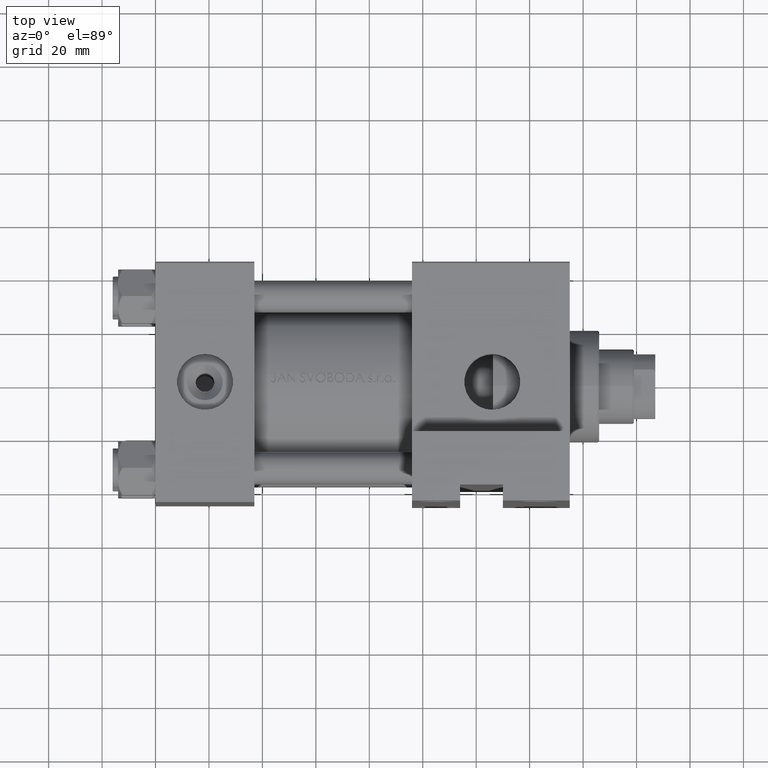
[diagram: clean part render]
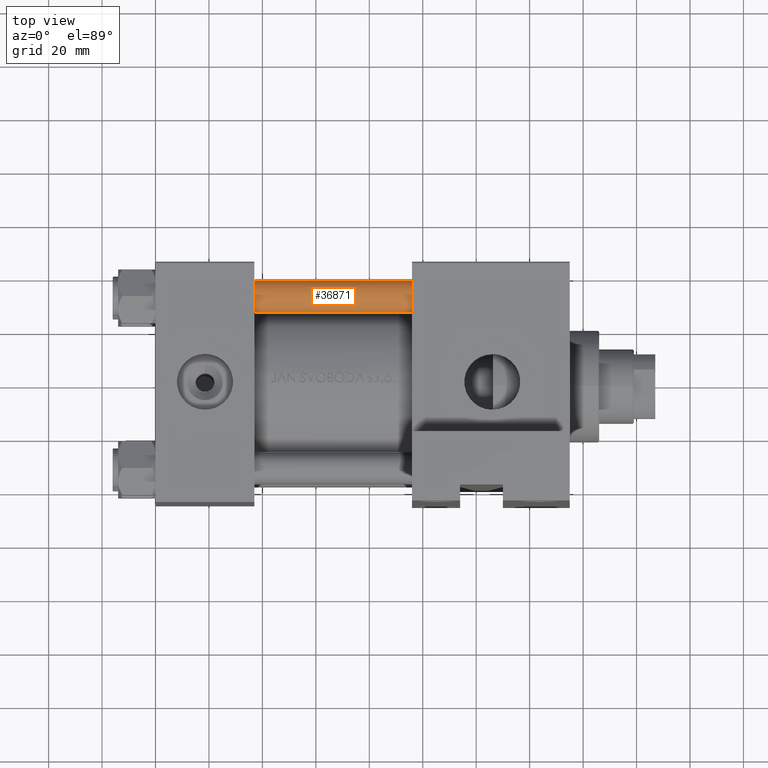
[diagram: same view with one face highlighted and labeled with its STEP entity id]
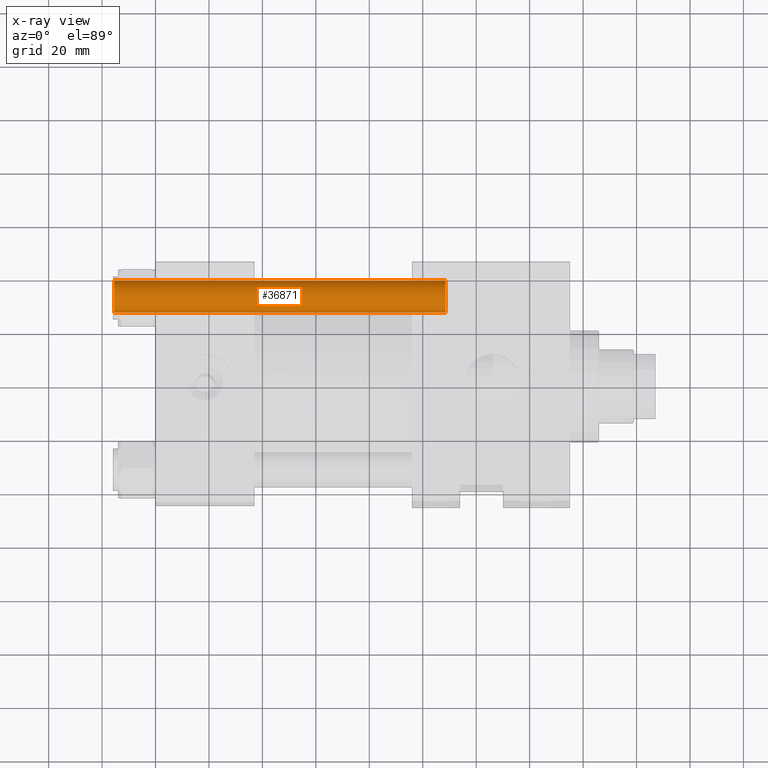
[diagram: x-ray of the same camera — body ghosted, the highlighted face saturated]
A machine part, top view. The second image highlights one B-rep face of the part: STEP entity #36871.
The next image is the same camera in x-ray: the body ghosted, the highlighted face saturated — about 0% of this face is hidden behind the body in this view.
In plain terms, the highlighted cylindrical surface (edge-blend (fillet) strip) has radius 6 mm, axis along (1, -0, 0).
Its self-contained STEP definition (entity closure, byte-faithful):
#3575 = CARTESIAN_POINT ( 'NONE',  ( -6.000000000000000888, 0.000000000000000000, 125.0000000000000000 ) ) ;
#4997 = EDGE_CURVE ( 'NONE', #46533, #47761, #27493, .T. ) ;
#5802 = AXIS2_PLACEMENT_3D ( 'NONE', #44771, #29909, #10306 ) ;
#6062 = CARTESIAN_POINT ( 'NONE',  ( 6.000000000000000888, 7.347880794884120722E-16, 0.4999999999999865663 ) ) ;
#6242 = CYLINDRICAL_SURFACE ( 'NONE', #46631, 6.000000000000000888 ) ;
#6590 = DIRECTION ( 'NONE',  ( -0.000000000000000000, -0.000000000000000000, -1.000000000000000000 ) ) ;
#10306 = DIRECTION ( 'NONE',  ( 1.000000000000000000, 0.000000000000000000, 0.000000000000000000 ) ) ;
#10395 = AXIS2_PLACEMENT_3D ( 'NONE', #21698, #29256, #24967 ) ;
#10764 = DIRECTION ( 'NONE',  ( -0.000000000000000000, -0.000000000000000000, -1.000000000000000000 ) ) ;
#12742 = VERTEX_POINT ( 'NONE', #6062 ) ;
#17248 = EDGE_CURVE ( 'NONE', #47761, #41542, #38018, .T. ) ;
#18842 = DIRECTION ( 'NONE',  ( -0.000000000000000000, -0.000000000000000000, -1.000000000000000000 ) ) ;
#18871 = ORIENTED_EDGE ( 'NONE', *, *, #34553, .T. ) ;
#21698 = CARTESIAN_POINT ( 'NONE',  ( 0.000000000000000000, 0.000000000000000000, 0.4999999999999865663 ) ) ;
#22323 = CARTESIAN_POINT ( 'NONE',  ( 0.000000000000000000, 0.000000000000000000, 125.0000000000000000 ) ) ;
#23865 = CARTESIAN_POINT ( 'NONE',  ( 6.000000000000000888, 7.347880794884120722E-16, 125.0000000000000000 ) ) ;
#24967 = DIRECTION ( 'NONE',  ( 1.000000000000000000, 0.000000000000000000, 0.000000000000000000 ) ) ;
#27493 = CIRCLE ( 'NONE', #5802, 6.000000000000000888 ) ;
#29256 = DIRECTION ( 'NONE',  ( -0.000000000000000000, -0.000000000000000000, 1.000000000000000000 ) ) ;
#29909 = DIRECTION ( 'NONE',  ( 0.000000000000000000, 0.000000000000000000, -1.000000000000000000 ) ) ;
#31404 = LINE ( 'NONE', #23865, #38441 ) ;
#32074 = CIRCLE ( 'NONE', #10395, 6.000000000000000888 ) ;
#32462 = ORIENTED_EDGE ( 'NONE', *, *, #4997, .T. ) ;
#32863 = EDGE_CURVE ( 'NONE', #46533, #12742, #31404, .T. ) ;
#34553 = EDGE_CURVE ( 'NONE', #41542, #12742, #32074, .T. ) ;
#34643 = ORIENTED_EDGE ( 'NONE', *, *, #32863, .F. ) ;
#35716 = CARTESIAN_POINT ( 'NONE',  ( 6.000000000000000888, 7.347880794884120722E-16, 124.5000000000000000 ) ) ;
#36871 = ADVANCED_FACE ( 'NONE', ( #49231 ), #6242, .T. ) ;
#38018 = LINE ( 'NONE', #3575, #47524 ) ;
#38441 = VECTOR ( 'NONE', #18842, 1000.000000000000000 ) ;
#40443 = DIRECTION ( 'NONE',  ( -1.000000000000000000, 0.000000000000000000, 0.000000000000000000 ) ) ;
#41542 = VERTEX_POINT ( 'NONE', #46225 ) ;
#43785 = CARTESIAN_POINT ( 'NONE',  ( -6.000000000000000888, 0.000000000000000000, 124.5000000000000000 ) ) ;
#44771 = CARTESIAN_POINT ( 'NONE',  ( 0.000000000000000000, 0.000000000000000000, 124.5000000000000000 ) ) ;
#46225 = CARTESIAN_POINT ( 'NONE',  ( -6.000000000000000888, 0.000000000000000000, 0.4999999999999865663 ) ) ;
#46533 = VERTEX_POINT ( 'NONE', #35716 ) ;
#46631 = AXIS2_PLACEMENT_3D ( 'NONE', #22323, #10764, #40443 ) ;
#47041 = ORIENTED_EDGE ( 'NONE', *, *, #17248, .T. ) ;
#47524 = VECTOR ( 'NONE', #6590, 1000.000000000000000 ) ;
#47761 = VERTEX_POINT ( 'NONE', #43785 ) ;
#49231 = FACE_OUTER_BOUND ( 'NONE', #49245, .T. ) ;
#49245 = EDGE_LOOP ( 'NONE', ( #34643, #32462, #47041, #18871 ) ) ;